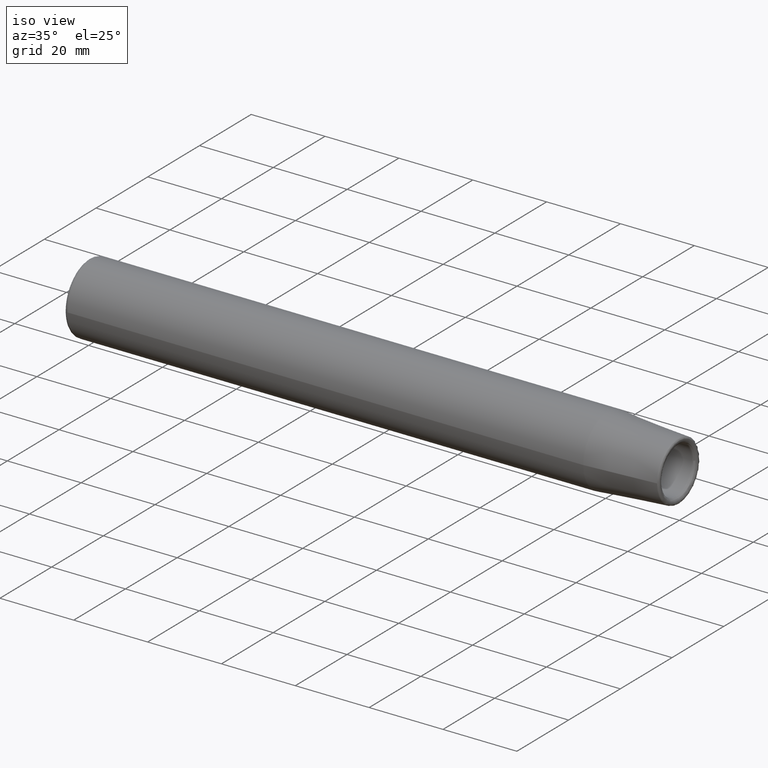
[diagram: clean part render]
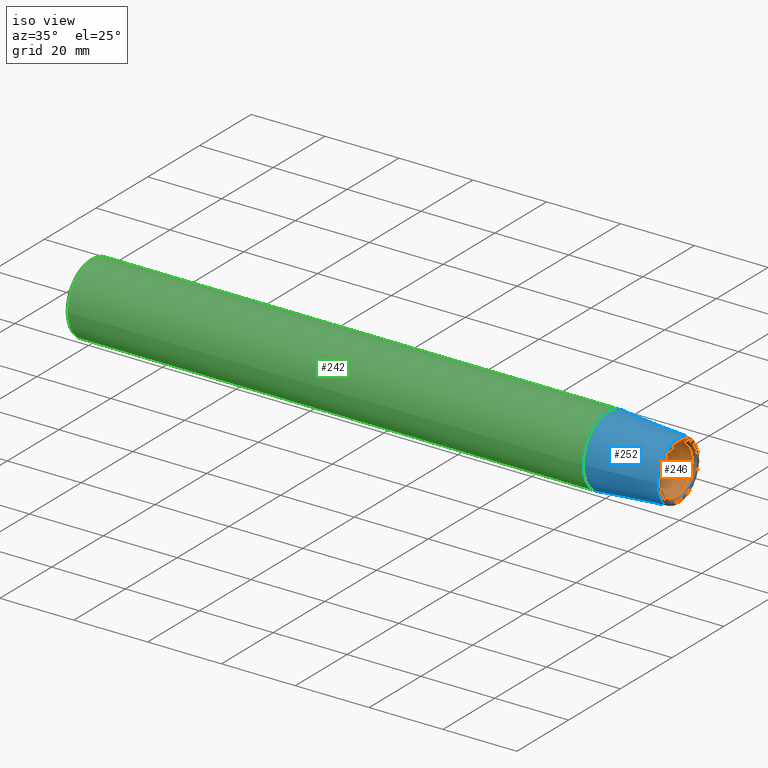
[diagram: same view with three faces highlighted in distinct colors, each labeled with its STEP entity id]
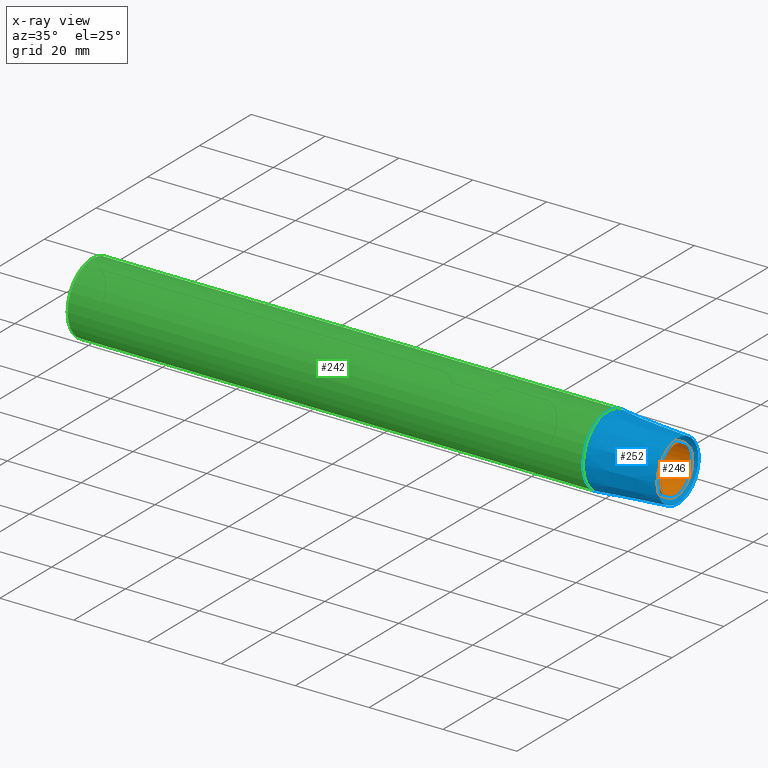
[diagram: x-ray of the same camera — body ghosted, the three highlighted faces saturated]
A machine part, iso view with three faces highlighted in distinct colors.
The next image is the same camera in x-ray (body ghosted, the three faces saturated) — at least one of them is partly hidden behind the body in this view.
Their STEP definitions:

[orange] entity #246 — the highlighted cylindrical surface (bore or boss wall) has radius 6.35 mm, axis along (1, 0, 0).
#30=CYLINDRICAL_SURFACE('',#304,6.34999999999999);
#41=FACE_OUTER_BOUND('',#58,.T.);
#58=EDGE_LOOP('',(#209,#210,#211,#212,#213));
#73=LINE('',#465,#81);
#81=VECTOR('',#385,6.34999999999999);
#99=CIRCLE('',#299,6.34999999999999);
#100=CIRCLE('',#300,6.34999999999999);
#103=CIRCLE('',#305,6.34999999999999);
#123=VERTEX_POINT('',#453);
#124=VERTEX_POINT('',#455);
#126=VERTEX_POINT('',#463);
#152=EDGE_CURVE('',#123,#124,#99,.T.);
#153=EDGE_CURVE('',#124,#123,#100,.T.);
#156=EDGE_CURVE('',#126,#126,#103,.T.);
#157=EDGE_CURVE('',#126,#124,#73,.T.);
#209=ORIENTED_EDGE('',*,*,#156,.F.);
#210=ORIENTED_EDGE('',*,*,#157,.T.);
#211=ORIENTED_EDGE('',*,*,#152,.F.);
#212=ORIENTED_EDGE('',*,*,#153,.F.);
#213=ORIENTED_EDGE('',*,*,#157,.F.);
#246=ADVANCED_FACE('',(#41),#30,.F.);
#299=AXIS2_PLACEMENT_3D('',#456,#371,#372);
#300=AXIS2_PLACEMENT_3D('',#457,#373,#374);
#304=AXIS2_PLACEMENT_3D('',#462,#381,#382);
#305=AXIS2_PLACEMENT_3D('',#464,#383,#384);
#371=DIRECTION('center_axis',(-1.,-1.22464679914735E-16,0.));
#372=DIRECTION('ref_axis',(1.31128703695885E-16,-1.,-1.22464679914735E-16));
#373=DIRECTION('center_axis',(-1.,-1.22464679914735E-16,0.));
#374=DIRECTION('ref_axis',(1.31128703695885E-16,-1.,-1.22464679914735E-16));
#381=DIRECTION('center_axis',(1.,0.,0.));
#382=DIRECTION('ref_axis',(0.,1.,0.));
#383=DIRECTION('center_axis',(1.,0.,0.));
#384=DIRECTION('ref_axis',(0.,0.,-1.));
#385=DIRECTION('',(1.,0.,0.));
#453=CARTESIAN_POINT('',(-1.,-7.77650717458568E-16,-6.34999999999999));
#455=CARTESIAN_POINT('',(-1.,-6.34999999999999,-7.77650717458568E-16));
#456=CARTESIAN_POINT('Origin',(-1.,0.,0.));
#457=CARTESIAN_POINT('Origin',(-1.,0.,0.));
#462=CARTESIAN_POINT('Origin',(-19.,0.,0.));
#463=CARTESIAN_POINT('',(-38.,-6.34999999999999,-7.77650717458568E-16));
#464=CARTESIAN_POINT('Origin',(-38.,0.,0.));
#465=CARTESIAN_POINT('',(-19.,-6.34999999999999,-7.77650717458568E-16));

[blue] entity #252 — the highlighted conical surface has half-angle 4.5 deg.
#47=FACE_OUTER_BOUND('',#67,.T.);
#67=EDGE_LOOP('',(#229,#230,#231,#232,#233));
#75=LINE('',#484,#83);
#83=VECTOR('',#411,8.7625);
#97=CIRCLE('',#295,9.52500000000001);
#107=CIRCLE('',#314,8.03626342103746);
#108=CIRCLE('',#315,8.03626342103746);
#122=VERTEX_POINT('',#448);
#130=VERTEX_POINT('',#478);
#131=VERTEX_POINT('',#479);
#150=EDGE_CURVE('',#122,#122,#97,.T.);
#162=EDGE_CURVE('',#130,#131,#107,.T.);
#163=EDGE_CURVE('',#131,#130,#108,.T.);
#165=EDGE_CURVE('',#122,#131,#75,.T.);
#229=ORIENTED_EDGE('',*,*,#150,.F.);
#230=ORIENTED_EDGE('',*,*,#165,.T.);
#231=ORIENTED_EDGE('',*,*,#162,.F.);
#232=ORIENTED_EDGE('',*,*,#163,.F.);
#233=ORIENTED_EDGE('',*,*,#165,.F.);
#236=CONICAL_SURFACE('',#317,8.7625,0.0785398163397452);
#252=ADVANCED_FACE('',(#47),#236,.T.);
#295=AXIS2_PLACEMENT_3D('',#450,#363,#364);
#314=AXIS2_PLACEMENT_3D('',#480,#403,#404);
#315=AXIS2_PLACEMENT_3D('',#481,#405,#406);
#317=AXIS2_PLACEMENT_3D('',#483,#409,#410);
#363=DIRECTION('center_axis',(-1.,-1.22464679914735E-16,0.));
#364=DIRECTION('ref_axis',(0.,0.,1.));
#403=DIRECTION('center_axis',(1.,2.07227469992857E-16,6.90758233309524E-17));
#404=DIRECTION('ref_axis',(2.07227469992857E-16,-1.,-3.06161699786838E-17));
#405=DIRECTION('center_axis',(1.,2.07227469992857E-16,6.90758233309524E-17));
#406=DIRECTION('ref_axis',(2.07227469992857E-16,-1.,-3.06161699786838E-17));
#409=DIRECTION('center_axis',(-1.,-1.22464679914735E-16,0.));
#410=DIRECTION('ref_axis',(0.,1.,0.));
#411=DIRECTION('',(0.996917333733128,0.0784590957278455,-9.60846804471016E-18));
#448=CARTESIAN_POINT('',(-19.3769622226664,-9.525,1.16647607618785E-15));
#450=CARTESIAN_POINT('Origin',(-19.3769622226664,-2.37299347631876E-15,
0.));
#478=CARTESIAN_POINT('',(-0.460770452136078,-1.04058653350286E-15,-8.03626342103746));
#479=CARTESIAN_POINT('',(-0.460770452136076,-8.03626342103746,9.84158427567848E-16));
#480=CARTESIAN_POINT('Origin',(-0.460770452136078,0.,1.23019803445981E-15));
#481=CARTESIAN_POINT('Origin',(-0.460770452136078,0.,1.23019803445981E-15));
#483=CARTESIAN_POINT('Origin',(-9.68848111133319,-1.18649673815938E-15,
0.));
#484=CARTESIAN_POINT('',(-9.68848111133319,-8.7625,1.07309675775287E-15));

[green] entity #242 — the highlighted cylindrical surface (bore or boss wall) has radius 9.525 mm, axis along (-1, -0, 0).
#29=CYLINDRICAL_SURFACE('',#294,9.525);
#37=FACE_OUTER_BOUND('',#53,.T.);
#53=EDGE_LOOP('',(#191,#192,#193,#194,#195));
#72=LINE('',#449,#80);
#80=VECTOR('',#362,9.525);
#95=CIRCLE('',#292,9.525);
#96=CIRCLE('',#293,9.525);
#97=CIRCLE('',#295,9.52500000000001);
#120=VERTEX_POINT('',#442);
#121=VERTEX_POINT('',#444);
#122=VERTEX_POINT('',#448);
#147=EDGE_CURVE('',#120,#121,#95,.T.);
#148=EDGE_CURVE('',#121,#120,#96,.T.);
#149=EDGE_CURVE('',#121,#122,#72,.T.);
#150=EDGE_CURVE('',#122,#122,#97,.T.);
#191=ORIENTED_EDGE('',*,*,#148,.F.);
#192=ORIENTED_EDGE('',*,*,#149,.T.);
#193=ORIENTED_EDGE('',*,*,#150,.T.);
#194=ORIENTED_EDGE('',*,*,#149,.F.);
#195=ORIENTED_EDGE('',*,*,#147,.F.);
#242=ADVANCED_FACE('',(#37),#29,.T.);
#292=AXIS2_PLACEMENT_3D('',#445,#356,#357);
#293=AXIS2_PLACEMENT_3D('',#446,#358,#359);
#294=AXIS2_PLACEMENT_3D('',#447,#360,#361);
#295=AXIS2_PLACEMENT_3D('',#450,#363,#364);
#356=DIRECTION('center_axis',(-1.,-1.22464679914735E-16,0.));
#357=DIRECTION('ref_axis',(1.16558847729675E-16,-1.,-1.83697019872103E-16));
#358=DIRECTION('center_axis',(-1.,-1.22464679914735E-16,0.));
#359=DIRECTION('ref_axis',(1.16558847729675E-16,-1.,-1.83697019872103E-16));
#360=DIRECTION('center_axis',(-1.,-1.22464679914735E-16,0.));
#361=DIRECTION('ref_axis',(0.,1.,0.));
#362=DIRECTION('',(1.,1.22464679914735E-16,0.));
#363=DIRECTION('center_axis',(-1.,-1.22464679914735E-16,0.));
#364=DIRECTION('ref_axis',(0.,0.,1.));
#442=CARTESIAN_POINT('',(-159.,-2.06383601826308E-14,-9.525));
#444=CARTESIAN_POINT('',(-159.,-9.52500000000002,1.16647607618785E-15));
#445=CARTESIAN_POINT('Origin',(-159.,-1.94718841064429E-14,0.));
#446=CARTESIAN_POINT('Origin',(-159.,-1.94718841064429E-14,0.));
#447=CARTESIAN_POINT('Origin',(-89.6884811113332,-1.09836711313382E-14,
0.));
#448=CARTESIAN_POINT('',(-19.3769622226664,-9.525,1.16647607618785E-15));
#449=CARTESIAN_POINT('',(-89.6884811113332,-9.52500000000001,1.16647607618785E-15));
#450=CARTESIAN_POINT('Origin',(-19.3769622226664,-2.37299347631876E-15,
0.));